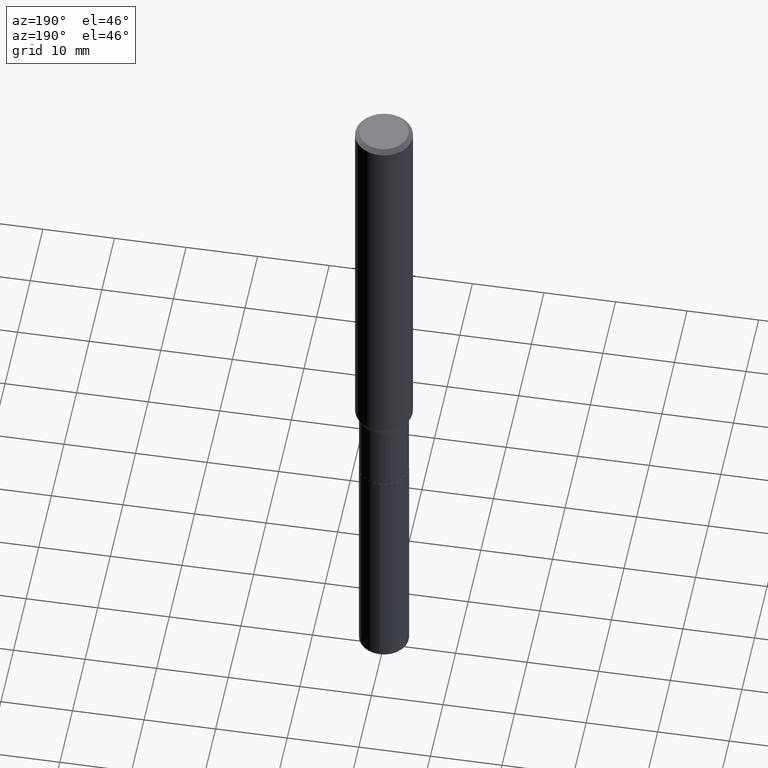
[diagram: clean part render]
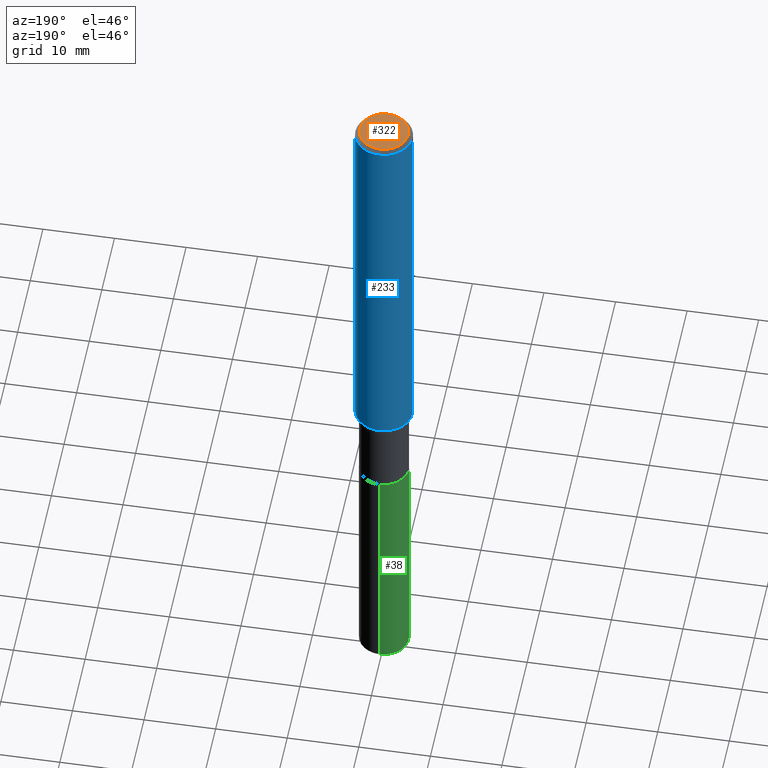
[diagram: same view with three faces highlighted in distinct colors, each labeled with its STEP entity id]
A machine part, auxiliary view with three faces highlighted in distinct colors.
Their STEP definitions:

[orange] entity #322 — the highlighted planar face has unit normal (0, -0, -1).
#36 = DIRECTION ( 'NONE',  ( -2.445468806185136597E-29, 3.491481338843145583E-15, 1.000000000000000000 ) ) ;
#68 = PLANE ( 'NONE',  #253 ) ;
#77 = EDGE_CURVE ( 'NONE', #275, #207, #90, .T. ) ;
#79 = DIRECTION ( 'NONE',  ( -1.000000000000000000, 6.982962677686265922E-15, -4.876176775795935793E-29 ) ) ;
#86 = EDGE_LOOP ( 'NONE', ( #300, #377 ) ) ;
#90 = CIRCLE ( 'NONE', #356, 0.1338749999999999940 ) ;
#140 = DIRECTION ( 'NONE',  ( -2.445468806185136597E-29, 3.491481338843145583E-15, 1.000000000000000000 ) ) ;
#207 = VERTEX_POINT ( 'NONE', #445 ) ;
#253 = AXIS2_PLACEMENT_3D ( 'NONE', #462, #433, #79 ) ;
#275 = VERTEX_POINT ( 'NONE', #336 ) ;
#276 = DIRECTION ( 'NONE',  ( 1.000000000000000000, -6.982962677686266711E-15, 4.876170806578254279E-29 ) ) ;
#300 = ORIENTED_EDGE ( 'NONE', *, *, #77, .T. ) ;
#322 = ADVANCED_FACE ( 'NONE', ( #361 ), #68, .F. ) ;
#328 = EDGE_CURVE ( 'NONE', #207, #275, #339, .T. ) ;
#336 = CARTESIAN_POINT ( 'NONE',  ( -0.1338749999999999940, 9.760872517903331886E-16, 4.101342130337800673E-18 ) ) ;
#339 = CIRCLE ( 'NONE', #418, 0.1338749999999999940 ) ;
#354 = CARTESIAN_POINT ( 'NONE',  ( -1.002970424325032604E-46, 1.431975951230895391E-32, 4.101342130344482109E-18 ) ) ;
#356 = AXIS2_PLACEMENT_3D ( 'NONE', #354, #36, #276 ) ;
#361 = FACE_OUTER_BOUND ( 'NONE', #86, .T. ) ;
#377 = ORIENTED_EDGE ( 'NONE', *, *, #328, .T. ) ;
#394 = DIRECTION ( 'NONE',  ( 1.000000000000000000, -6.982962677686266711E-15, 4.876170806578254279E-29 ) ) ;
#399 = CARTESIAN_POINT ( 'NONE',  ( -1.002970424325032604E-46, 1.431975951230895391E-32, 4.101342130344482109E-18 ) ) ;
#418 = AXIS2_PLACEMENT_3D ( 'NONE', #399, #140, #394 ) ;
#433 = DIRECTION ( 'NONE',  ( 2.438088387897960049E-29, -3.491481338843145188E-15, -1.000000000000000000 ) ) ;
#445 = CARTESIAN_POINT ( 'NONE',  ( 0.1338749999999999940, -1.040731925365424925E-15, 4.101342130351390035E-18 ) ) ;
#462 = CARTESIAN_POINT ( 'NONE',  ( -5.014852121625163022E-47, 7.159879756154476955E-33, 2.050671065172241055E-18 ) ) ;

[blue] entity #233 — the highlighted cylindrical surface (edge-blend (fillet) strip) has radius 4.0005 mm, axis along (-0, 0, 1).
#4 = VERTEX_POINT ( 'NONE', #388 ) ;
#12 = EDGE_CURVE ( 'NONE', #379, #257, #125, .T. ) ;
#39 = LINE ( 'NONE', #105, #244 ) ;
#41 = CARTESIAN_POINT ( 'NONE',  ( 5.777420054612421104E-31, -8.248624663016984002E-17, -0.02362500000000014588 ) ) ;
#43 = CARTESIAN_POINT ( 'NONE',  ( -0.1575000000000002787, -6.459613645325440815E-15, -2.170631236041119738 ) ) ;
#49 = ORIENTED_EDGE ( 'NONE', *, *, #341, .F. ) ;
#62 = DIRECTION ( 'NONE',  ( -2.445468806185136597E-29, 3.491481338843145583E-15, 1.000000000000000000 ) ) ;
#75 = DIRECTION ( 'NONE',  ( -2.445468806185136597E-29, 3.491481338843145583E-15, 1.000000000000000000 ) ) ;
#84 = VERTEX_POINT ( 'NONE', #165 ) ;
#96 = DIRECTION ( 'NONE',  ( 1.000000000000000000, -6.982962677686267499E-15, 0.000000000000000000 ) ) ;
#97 = FACE_OUTER_BOUND ( 'NONE', #317, .T. ) ;
#105 = CARTESIAN_POINT ( 'NONE',  ( -0.1575000000000001676, 1.119104808822158984E-15, -7.747322767151485392E-30 ) ) ;
#112 = AXIS2_PLACEMENT_3D ( 'NONE', #41, #75, #256 ) ;
#123 = DIRECTION ( 'NONE',  ( -2.445468806185136597E-29, 3.491481338843145583E-15, 1.000000000000000000 ) ) ;
#125 = CIRCLE ( 'NONE', #400, 0.1575000000000003064 ) ;
#139 = CARTESIAN_POINT ( 'NONE',  ( 0.1575000000000001676, -1.099816621735588269E-15, 7.679978421878606441E-30 ) ) ;
#154 = ORIENTED_EDGE ( 'NONE', *, *, #419, .T. ) ;
#165 = CARTESIAN_POINT ( 'NONE',  ( -0.1575000000000000011, -2.711497541566724726E-15, -0.02362500000000014588 ) ) ;
#171 = CIRCLE ( 'NONE', #112, 0.1575000000000000011 ) ;
#174 = DIRECTION ( 'NONE',  ( -2.445468806185136877E-29, 3.491481338843145188E-15, 1.000000000000000000 ) ) ;
#199 = CARTESIAN_POINT ( 'NONE',  ( 5.308210977469644708E-29, -7.578718454147599996E-15, -2.170631236041119738 ) ) ;
#201 = DIRECTION ( 'NONE',  ( 1.000000000000000000, -6.982962677686267499E-15, 4.876176775795935232E-29 ) ) ;
#216 = ORIENTED_EDGE ( 'NONE', *, *, #12, .T. ) ;
#233 = ADVANCED_FACE ( 'NONE', ( #97 ), #239, .T. ) ;
#239 = CYLINDRICAL_SURFACE ( 'NONE', #284, 0.1575000000000001676 ) ;
#244 = VECTOR ( 'NONE', #289, 39.37007874015748143 ) ;
#256 = DIRECTION ( 'NONE',  ( 1.000000000000000000, -6.982962677686265922E-15, 0.000000000000000000 ) ) ;
#257 = VERTEX_POINT ( 'NONE', #43 ) ;
#284 = AXIS2_PLACEMENT_3D ( 'NONE', #389, #62, #201 ) ;
#288 = CARTESIAN_POINT ( 'NONE',  ( 0.1575000000000002787, -8.678535075883189843E-15, -2.170631236041119738 ) ) ;
#289 = DIRECTION ( 'NONE',  ( -2.445468806185136877E-29, 3.491481338843145188E-15, 1.000000000000000000 ) ) ;
#317 = EDGE_LOOP ( 'NONE', ( #216, #154, #49, #407 ) ) ;
#323 = LINE ( 'NONE', #139, #401 ) ;
#341 = EDGE_CURVE ( 'NONE', #4, #84, #171, .T. ) ;
#369 = EDGE_CURVE ( 'NONE', #379, #4, #323, .T. ) ;
#379 = VERTEX_POINT ( 'NONE', #288 ) ;
#388 = CARTESIAN_POINT ( 'NONE',  ( 0.1575000000000000011, -1.182302868365756679E-15, -0.02362500000000014588 ) ) ;
#389 = CARTESIAN_POINT ( 'NONE',  ( 0.000000000000000000, 0.000000000000000000, 0.000000000000000000 ) ) ;
#400 = AXIS2_PLACEMENT_3D ( 'NONE', #199, #123, #96 ) ;
#401 = VECTOR ( 'NONE', #174, 39.37007874015748143 ) ;
#407 = ORIENTED_EDGE ( 'NONE', *, *, #369, .F. ) ;
#419 = EDGE_CURVE ( 'NONE', #257, #84, #39, .T. ) ;

[green] entity #38 — the highlighted cylindrical surface (edge-blend (fillet) strip) has radius 3.4544 mm, axis along (-0, 0, 1).
#24 = AXIS2_PLACEMENT_3D ( 'NONE', #214, #202, #101 ) ;
#38 = ADVANCED_FACE ( 'NONE', ( #281 ), #131, .T. ) ;
#51 = AXIS2_PLACEMENT_3D ( 'NONE', #309, #451, #124 ) ;
#59 = CARTESIAN_POINT ( 'NONE',  ( -9.496829241652681619E-16, -0.1360000000000091136, -2.612999999999999101 ) ) ;
#73 = EDGE_LOOP ( 'NONE', ( #349, #359, #287, #428 ) ) ;
#76 = VECTOR ( 'NONE', #268, 39.37007874015748143 ) ;
#94 = LINE ( 'NONE', #194, #76 ) ;
#101 = DIRECTION ( 'NONE',  ( -6.982962677686265922E-15, -1.000000000000000000, 4.017423520094504617E-15 ) ) ;
#124 = DIRECTION ( 'NONE',  ( -6.982962677686265922E-15, -1.000000000000000000, 4.017423520094504617E-15 ) ) ;
#131 = CYLINDRICAL_SURFACE ( 'NONE', #24, 0.1360000000000000098 ) ;
#142 = CIRCLE ( 'NONE', #273, 0.1360000000000000098 ) ;
#151 = EDGE_CURVE ( 'NONE', #263, #398, #422, .T. ) ;
#158 = CARTESIAN_POINT ( 'NONE',  ( 9.627366479566132593E-29, -1.374659816557931194E-14, -3.937000000000000277 ) ) ;
#159 = EDGE_CURVE ( 'NONE', #398, #227, #231, .T. ) ;
#176 = EDGE_CURVE ( 'NONE', #411, #227, #94, .T. ) ;
#187 = EDGE_CURVE ( 'NONE', #263, #411, #142, .T. ) ;
#194 = CARTESIAN_POINT ( 'NONE',  ( -9.496829241652681619E-16, -0.1360000000000091136, -2.612999999999999101 ) ) ;
#202 = DIRECTION ( 'NONE',  ( -2.445133299852243437E-29, 3.491961803007682991E-15, 1.000000000000000000 ) ) ;
#214 = CARTESIAN_POINT ( 'NONE',  ( 6.390009990561760815E-29, -9.123240738397138949E-15, -2.612999999999999545 ) ) ;
#217 = CARTESIAN_POINT ( 'NONE',  ( 9.663381206338327605E-16, 0.1359999999999908782, -2.613000000000000433 ) ) ;
#227 = VERTEX_POINT ( 'NONE', #59 ) ;
#231 = CIRCLE ( 'NONE', #51, 0.1360000000000000098 ) ;
#243 = DIRECTION ( 'NONE',  ( -2.445133299852243437E-29, 3.491961803007683385E-15, 1.000000000000000000 ) ) ;
#246 = CARTESIAN_POINT ( 'NONE',  ( 9.663381206338000227E-16, 0.1359999999999908782, -2.613000000000000433 ) ) ;
#251 = CARTESIAN_POINT ( 'NONE',  ( -9.496829241652358186E-16, -0.1360000000000137488, -3.936999999999999389 ) ) ;
#263 = VERTEX_POINT ( 'NONE', #410 ) ;
#268 = DIRECTION ( 'NONE',  ( -2.445133299852243437E-29, 3.491961803007683385E-15, 1.000000000000000000 ) ) ;
#273 = AXIS2_PLACEMENT_3D ( 'NONE', #158, #345, #448 ) ;
#281 = FACE_OUTER_BOUND ( 'NONE', #73, .T. ) ;
#287 = ORIENTED_EDGE ( 'NONE', *, *, #176, .T. ) ;
#307 = VECTOR ( 'NONE', #243, 39.37007874015748143 ) ;
#309 = CARTESIAN_POINT ( 'NONE',  ( 6.390009990561760815E-29, -9.123240738397138949E-15, -2.612999999999999545 ) ) ;
#345 = DIRECTION ( 'NONE',  ( -2.445133299852243437E-29, 3.491961803007682991E-15, 1.000000000000000000 ) ) ;
#349 = ORIENTED_EDGE ( 'NONE', *, *, #151, .F. ) ;
#359 = ORIENTED_EDGE ( 'NONE', *, *, #187, .T. ) ;
#398 = VERTEX_POINT ( 'NONE', #217 ) ;
#410 = CARTESIAN_POINT ( 'NONE',  ( 9.663381206338163916E-16, 0.1359999999999862430, -3.937000000000000721 ) ) ;
#411 = VERTEX_POINT ( 'NONE', #251 ) ;
#422 = LINE ( 'NONE', #246, #307 ) ;
#428 = ORIENTED_EDGE ( 'NONE', *, *, #159, .F. ) ;
#448 = DIRECTION ( 'NONE',  ( -6.982962677686265922E-15, -1.000000000000000000, 4.017423520094504617E-15 ) ) ;
#451 = DIRECTION ( 'NONE',  ( -2.445133299852243437E-29, 3.491961803007682991E-15, 1.000000000000000000 ) ) ;